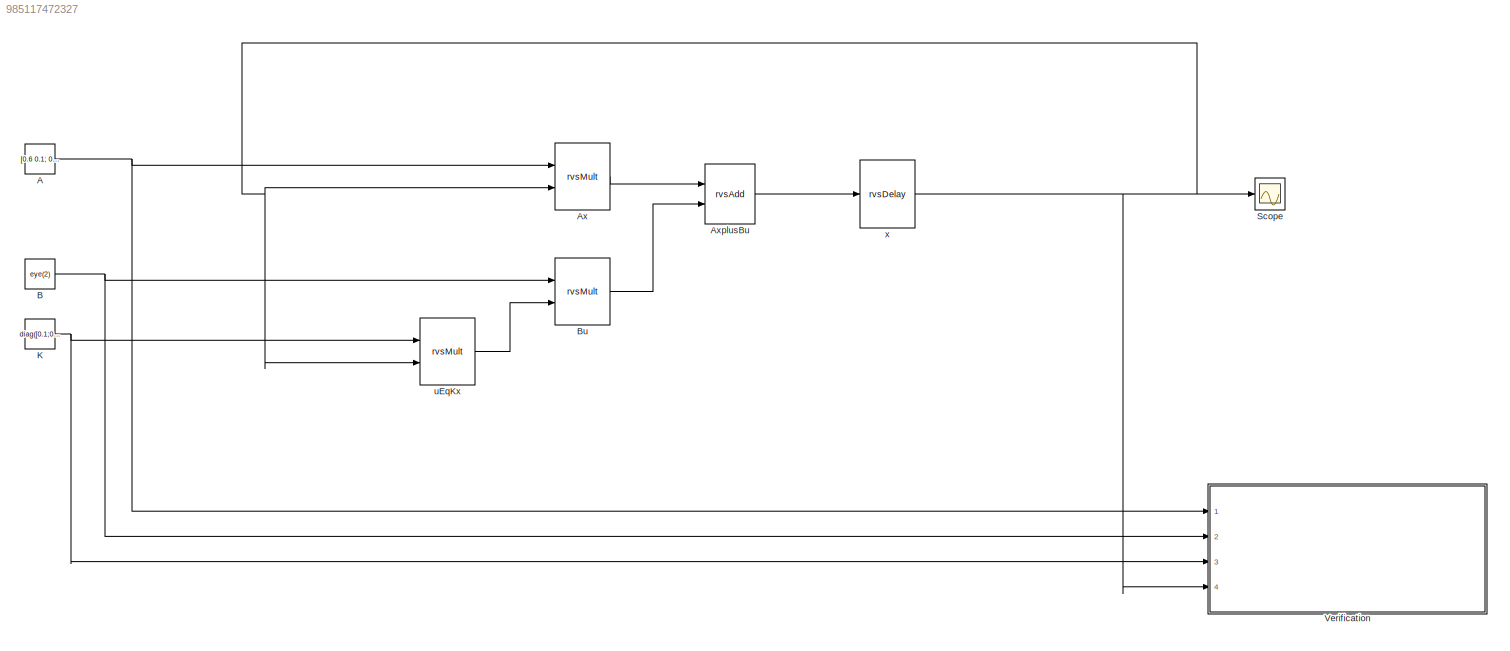
MODEL slx_985117472327
KIND model
CONFIG AbsTol = auto
CONFIG FixedStep = auto
CONFIG MaxStep = auto
CONFIG MinStep = auto
CONFIG RelTol = 1e-3
CONFIG SampleTimeConstraint = Unconstrained
CONFIG Solver = FixedStepDiscrete
CONFIG SolverMode = Auto
CONFIG SolverName = FixedStepDiscrete
CONFIG StartTime = 0.0
CONFIG StopTime = 10.0
BLOCK [Constant] A
  Value = [0.6 0.1; 0.0 0.5]
BLOCK [Reference] Ax  REF=rvs/rvsMult  (lib defined in slx_4df59143a37a)
  Ports = [2, 1]
  SourceBlock = rvs/rvsMult
  SourceType = rvsMult
BLOCK [Reference] AxplusBu  REF=rvs/rvsAdd  (lib defined in slx_4df59143a37a)
  Ports = [2, 1]
  SourceBlock = rvs/rvsAdd
  SourceType = rvsAdd
BLOCK [Constant] B
  Value = eye(2)
BLOCK [Reference] Bu  REF=rvs/rvsMult  (lib defined in slx_4df59143a37a)
  Ports = [2, 1]
  SourceBlock = rvs/rvsMult
  SourceType = rvsMult
BLOCK [Constant] K
  Value = diag([0.1;0.1])
BLOCK [Scope] Scope
  Ports = [1]
  ScopeSpecificationString = Simulink.scopes.TimeScopeBlockCfg('CurrentConfiguration', extmgr.ConfigurationSet(extmgr.Configuration('Core','General UI',true),extmgr.Configuration('Core','Source UI',true),extmgr.Configuration('Sources','WiredSimulink',true),extmgr.Configuration('Visuals','Time Domain',true,'SerializedDisplays',{struct('MinYLimReal','-0.65','MaxYLimReal','0.85','YLabelReal','','MinYLimMag','0.00000','MaxYLimMag...<+1338ch>
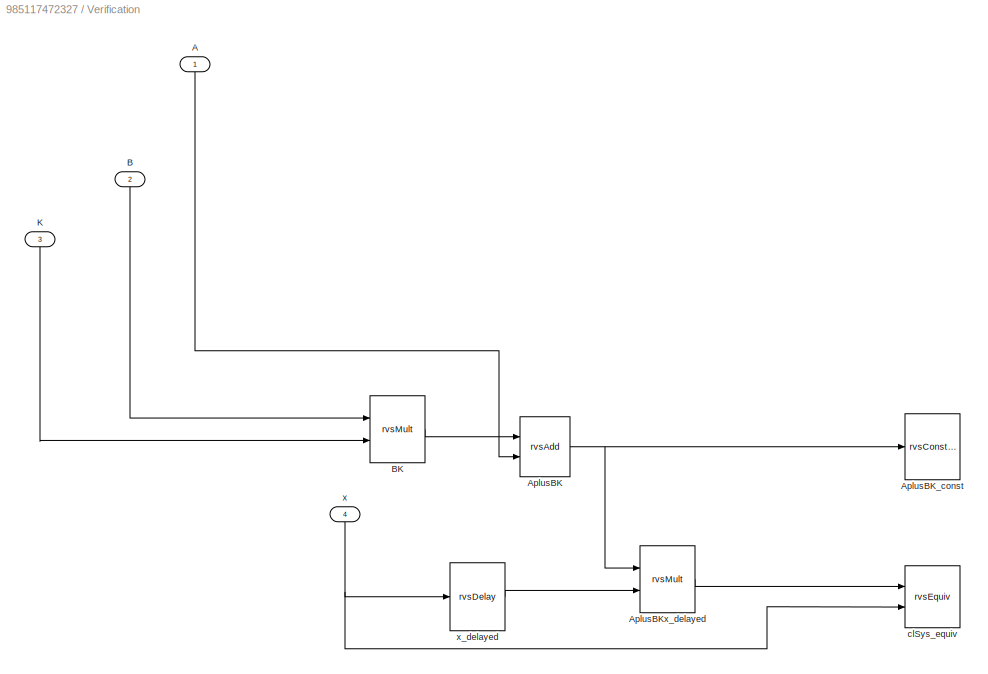
BLOCK [SubSystem] Verification
  Ports = [4]
  RequestExecContextInheritance = off
  Variant = off
BLOCK [Inport] Verification/A
  IconDisplay = Port number
BLOCK [Reference] Verification/AplusBK  REF=rvs/rvsAdd  (lib defined in slx_4df59143a37a)
  Ports = [2, 1]
  SourceBlock = rvs/rvsAdd
  SourceType = rvsAdd
BLOCK [Reference] Verification/AplusBK_const  REF=rvs/rvsConstant  (lib defined in slx_4df59143a37a)
  Ports = [1]
  SourceBlock = rvs/rvsConstant
  SourceType = rvsConstant
BLOCK [Reference] Verification/AplusBKx_delayed  REF=rvs/rvsMult  (lib defined in slx_4df59143a37a)
  Ports = [2, 1]
  SourceBlock = rvs/rvsMult
  SourceType = rvsMult
BLOCK [Inport] Verification/B
  IconDisplay = Port number
  Port = 2
BLOCK [Reference] Verification/BK  REF=rvs/rvsMult  (lib defined in slx_4df59143a37a)
  Ports = [2, 1]
  SourceBlock = rvs/rvsMult
  SourceType = rvsMult
BLOCK [Inport] Verification/K
  IconDisplay = Port number
  Port = 3
BLOCK [Reference] Verification/clSys_equiv  REF=rvs/rvsEquiv  (lib defined in slx_4df59143a37a)
  Ports = [2]
  SourceBlock = rvs/rvsEquiv
  SourceType = rvsEquiv
BLOCK [Inport] Verification/x
  IconDisplay = Port number
  Port = 4
BLOCK [Reference] Verification/x_delayed  REF=rvs/rvsDelay  (lib defined in slx_4df59143a37a)
  Ports = [1, 1]
  SourceBlock = rvs/rvsDelay
  SourceType = rvsDelay
BLOCK [Reference] uEqKx  REF=rvs/rvsMult  (lib defined in slx_4df59143a37a)
  Ports = [2, 1]
  SourceBlock = rvs/rvsMult
  SourceType = rvsMult
BLOCK [Reference] x  REF=rvs/rvsDelay  (lib defined in slx_4df59143a37a)
  Ports = [1, 1]
  SourceBlock = rvs/rvsDelay
  SourceType = rvsDelay
NET A:1 -> Ax:1, Verification:1
LINE Ax:1 -> AxplusBu:1
LINE AxplusBu:1 -> x:1
NET B:1 -> Bu:1, Verification:2
LINE Bu:1 -> AxplusBu:2
NET K:1 -> Verification:3, uEqKx:1
LINE Verification/A:1 -> Verification/AplusBK:2
NET Verification/AplusBK:1 -> Verification/AplusBK_const:1, Verification/AplusBKx_delayed:1
LINE Verification/AplusBKx_delayed:1 -> Verification/clSys_equiv:1
LINE Verification/B:1 -> Verification/BK:1
LINE Verification/BK:1 -> Verification/AplusBK:1
LINE Verification/K:1 -> Verification/BK:2
NET Verification/x:1 -> Verification/clSys_equiv:2, Verification/x_delayed:1
LINE Verification/x_delayed:1 -> Verification/AplusBKx_delayed:2
LINE uEqKx:1 -> Bu:2
NET x:1 -> Ax:2, Scope:1, Verification:4, uEqKx:2
note: NET lines group one-source signal fan-out (src -> all destinations, sorted); 1:1 wires keep LINE
